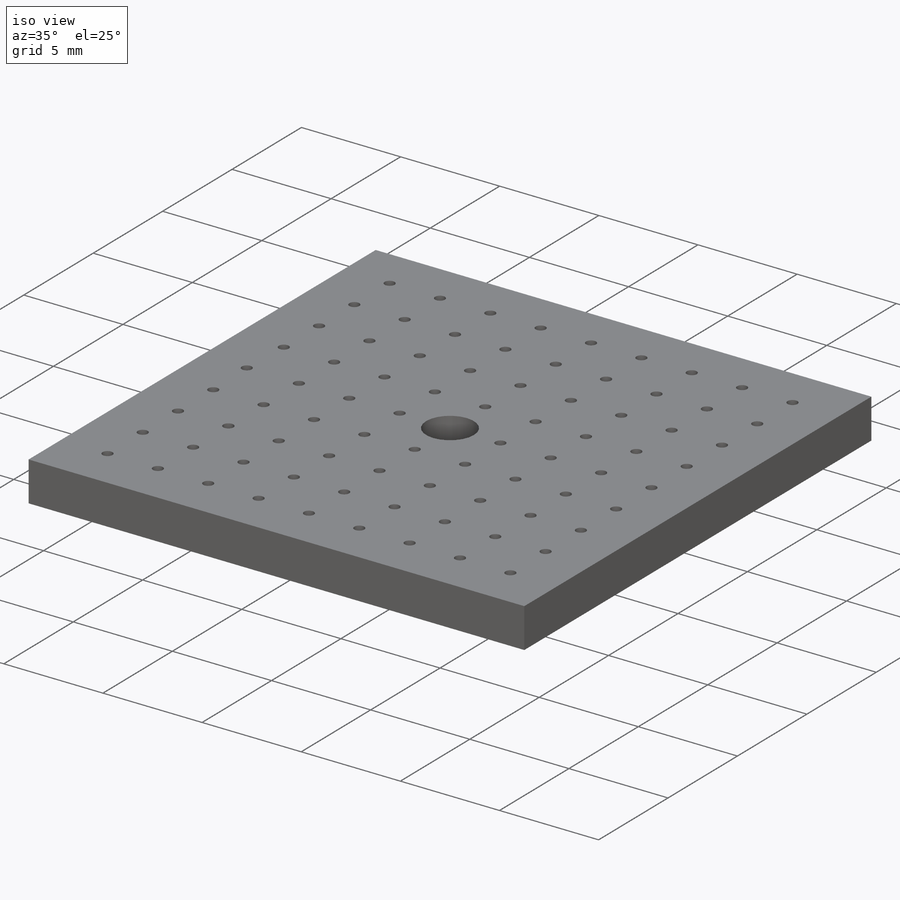
[diagram: iso view]
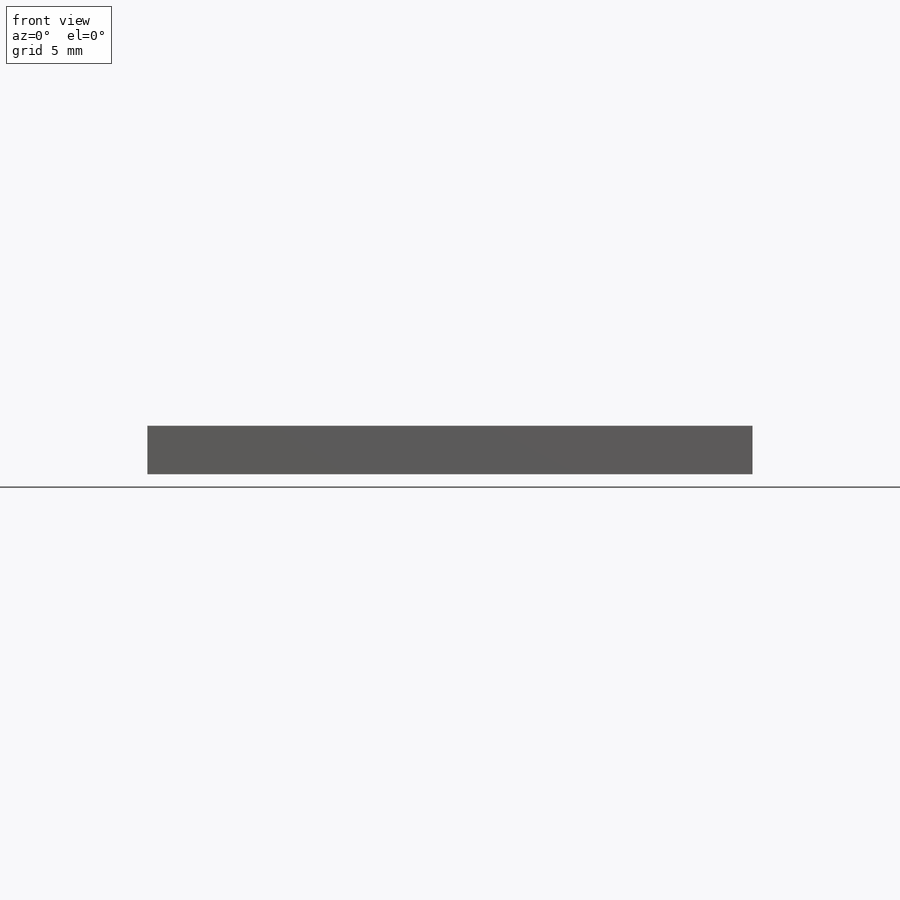
[diagram: front view]
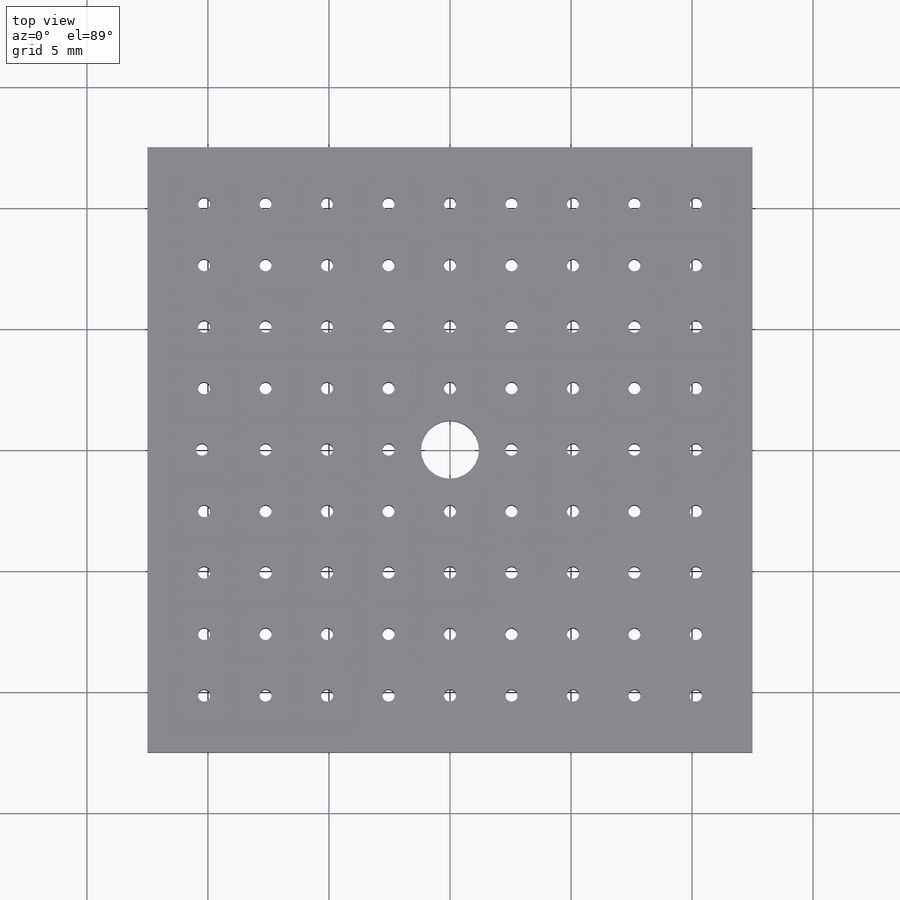
[diagram: top view]
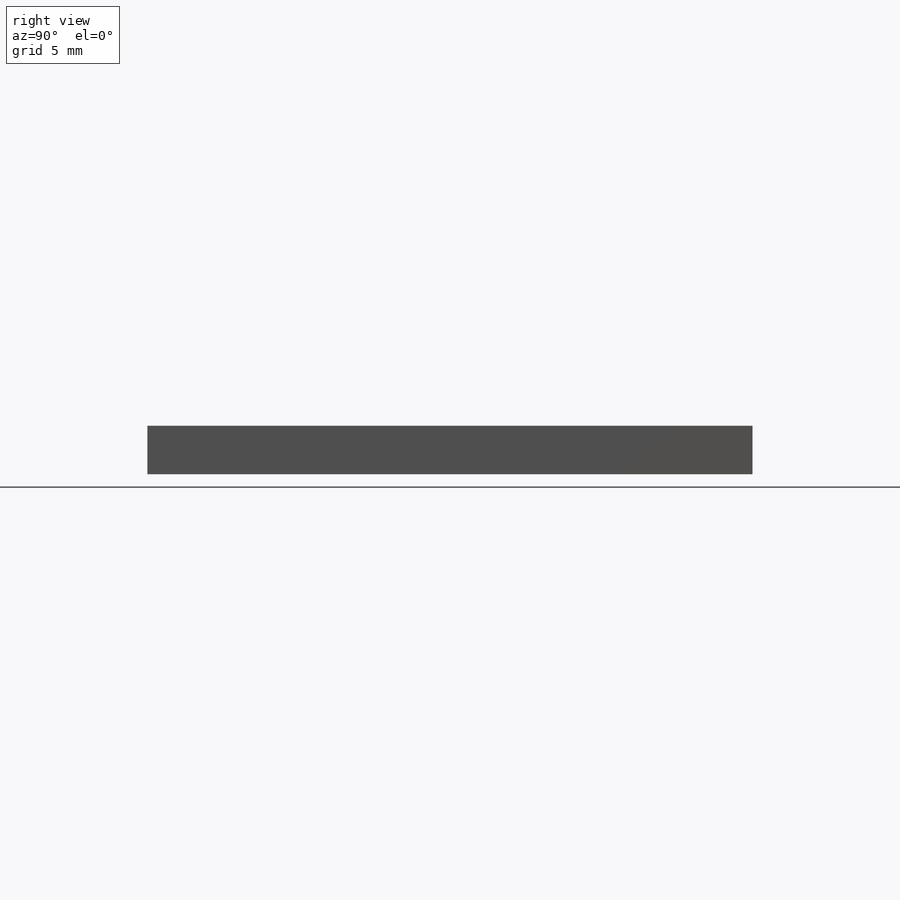
[diagram: right view]
SOLIDWORKS PART (.sldprt)
format: sldprt  version: not decoded by parser v0  size: 313,344 bytes
history: native  units: mm
features: sketch x3, cut_extrude x2, material x1, extrude x1 (+12 scaffold rows collapsed)
feature tree (19):
  scaffold x12  (default folders/planes/origin — collapsed)
  material  "재질 <지정안함>"
  sketch  "스케치1"  dims[D1=25.0mm D2=25.0mm D3=12.5mm D4=12.5mm]
  extrude  "보스-돌출1"  Depth=2mm
  sketch  "스케치2"  dims[D1=~0.430439mm]
  cut_extrude  "컷-돌출1"  Depth=2mm
  sketch  "스케치3"  dims[c1.D11=~0.475512mm c1.D19=0.5mm c1.D1=2.54mm c1.D2=2.54mm c1.D3=2.54mm c1.D4=2.54mm c1.D5=2.54mm c1.D6=2.54mm c1.D7=2.54mm c1.D8=2.54mm c1.D9=2.54mm c1.D10=2.54mm c2.D11=2.54mm c2.D12=2.54mm c2.D13=2.54mm c2.D14=2.54mm c2.D15=2.54mm c2.D16=2.54mm c2.D17=2.54mm c2.D18=2.54mm]
  cut_extrude  "컷-돌출2"  Depth=2mm
decode coverage: 6 of 6 modeling features carry decoded parameters
note: ~ marks probable driven/reference dimensions
note: suppression state not decoded; provenance and decode notes live in map.json
